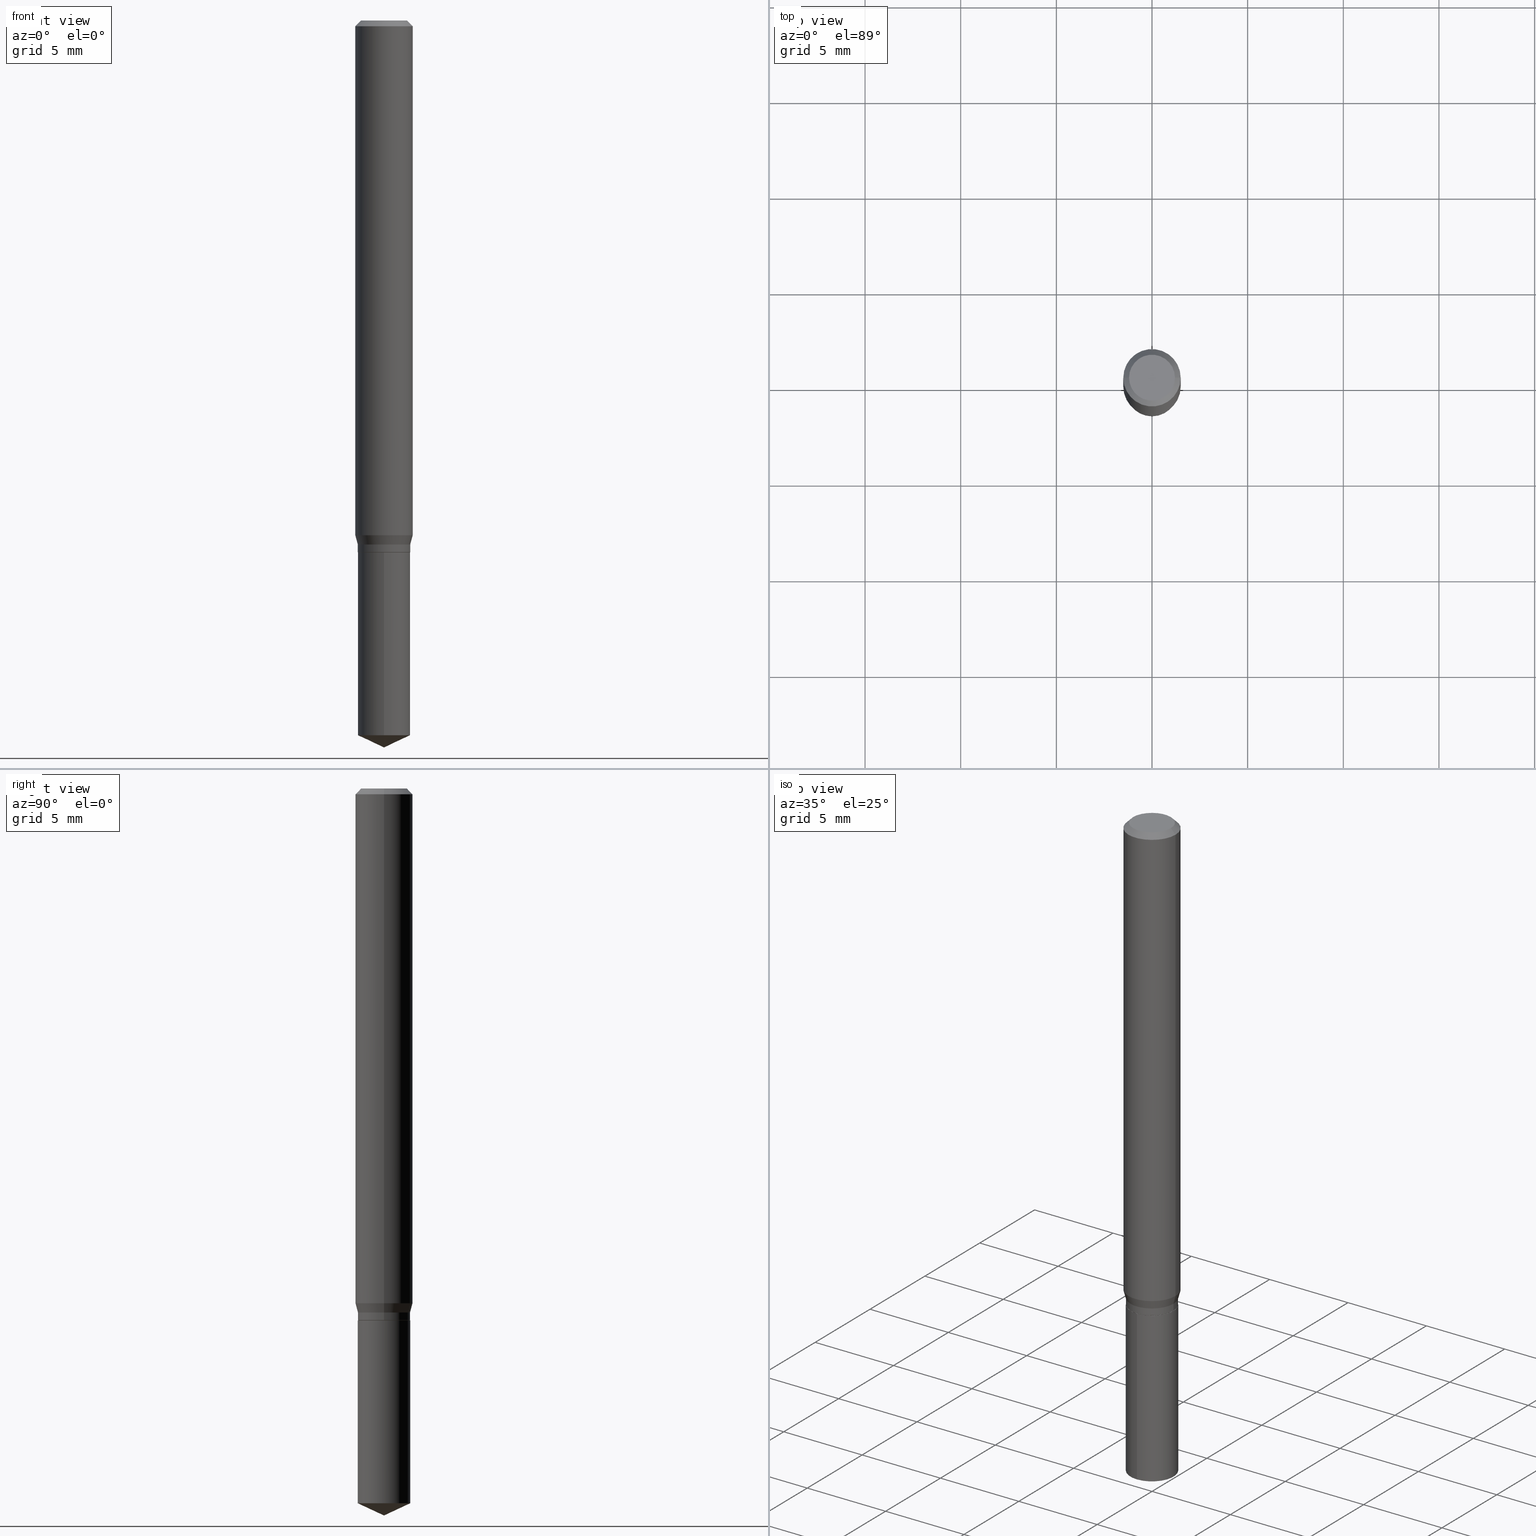
[diagram: canonical four-view strip — front | top / right | iso, engineering-drawing reading convention]
A machine part, canonical four-view strip (front | top / right | iso — engineering-drawing reading convention). The complete STEP part file that produces these views, byte-faithful:
ISO-10303-21;
HEADER;
FILE_DESCRIPTION (( 'STEP AP203' ),
    '1' );
FILE_NAME ('07689.STEP',
    '2024-04-24T01:05:20',
    ( '' ),
    ( '' ),
    'SwSTEP 2.0',
    'SolidWorks 2023',
    '' );
FILE_SCHEMA (( 'CONFIG_CONTROL_DESIGN' ));
ENDSEC;

DATA;
#1 = PERSON_AND_ORGANIZATION ( #293, #357 ) ;
#2 = ADVANCED_BREP_SHAPE_REPRESENTATION ( '07689', ( #387, #219, #482 ), #345 ) ;
#3 = ORIENTED_EDGE ( 'NONE', *, *, #358, .T. ) ;
#4 = CARTESIAN_POINT ( 'NONE',  ( 2.676565608369632355E-29, -3.821426325363822773E-15, -1.094500000000000028 ) ) ;
#5 = CIRCLE ( 'NONE', #366, 0.04724000000000000421 ) ;
#6 = ORIENTED_EDGE ( 'NONE', *, *, #207, .F. ) ;
#7 = CARTESIAN_POINT ( 'NONE',  ( 3.658651059288794515E-29, -5.223626456482161457E-15, -1.496099999999999985 ) ) ;
#8 = APPROVAL ( #86, 'UNSPECIFIED' ) ;
#9 = APPLICATION_PROTOCOL_DEFINITION ( 'international standard', 'config_control_design', 1994, #149 ) ;
#10 = DIRECTION ( 'NONE',  ( 1.000000000000000000, -6.982962677686264344E-15, 0.000000000000000000 ) ) ;
#11 = ORIENTED_EDGE ( 'NONE', *, *, #31, .F. ) ;
#12 = DIRECTION ( 'NONE',  ( -2.445468806185136597E-29, 3.491481338843145583E-15, 1.000000000000000000 ) ) ;
#13 = ORIENTED_EDGE ( 'NONE', *, *, #199, .T. ) ;
#14 = PRODUCT_DEFINITION_FORMATION_WITH_SPECIFIED_SOURCE ( 'ANY', '', #225, .NOT_KNOWN. ) ;
#15 = FACE_OUTER_BOUND ( 'NONE', #151, .T. ) ;
#16 = EDGE_LOOP ( 'NONE', ( #6, #106, #164, #96 ) ) ;
#17 = DIRECTION ( 'NONE',  ( -2.445458899330790108E-29, 3.491495526022433599E-15, 1.000000000000000000 ) ) ;
#18 = LINE ( 'NONE', #326, #451 ) ;
#19 = MECHANICAL_CONTEXT ( 'NONE', #355, 'mechanical' ) ;
#20 = CARTESIAN_POINT ( 'NONE',  ( 3.833378059426100768E-16, 0.05394999999999487705, -1.470942701842538058 ) ) ;
#21 = DIRECTION ( 'NONE',  ( -1.000000000000000000, 6.982962677686266711E-15, 0.000000000000000000 ) ) ;
#22 = VERTEX_POINT ( 'NONE', #305 ) ;
#23 = CARTESIAN_POINT ( 'NONE',  ( -3.767308364611473060E-16, -0.05395000000000382129, -1.094499999999999806 ) ) ;
#24 = AXIS2_PLACEMENT_3D ( 'NONE', #171, #442, #402 ) ;
#25 = PERSON_AND_ORGANIZATION ( #293, #357 ) ;
#26 = APPROVAL_STATUS ( 'not_yet_approved' ) ;
#27 = CARTESIAN_POINT ( 'NONE',  ( 0.05394999999999999796, -4.141595164135737572E-15, -1.078300000000000036 ) ) ;
#28 = APPROVAL ( #82, 'UNSPECIFIED' ) ;
#29 = COORDINATED_UNIVERSAL_TIME_OFFSET ( 5, 0, .BEHIND. ) ;
#30 = LINE ( 'NONE', #412, #120 ) ;
#31 = EDGE_CURVE ( 'NONE', #108, #368, #226, .T. ) ;
#32 = ORIENTED_EDGE ( 'NONE', *, *, #395, .F. ) ;
#33 = COORDINATED_UNIVERSAL_TIME_OFFSET ( 5, 0, .BEHIND. ) ;
#34 = CARTESIAN_POINT ( 'NONE',  ( 2.676565608369631794E-29, -3.821426325363822773E-15, -1.094499999999999806 ) ) ;
#35 = ORIENTED_EDGE ( 'NONE', *, *, #122, .F. ) ;
#36 = AXIS2_PLACEMENT_3D ( 'NONE', #186, #384, #78 ) ;
#37 = AXIS2_PLACEMENT_3D ( 'NONE', #437, #169, #388 ) ;
#38 = ORIENTED_EDGE ( 'NONE', *, *, #385, .F. ) ;
#39 = ADVANCED_FACE ( 'NONE', ( #115 ), #102, .T. ) ;
#40 = DIRECTION ( 'NONE',  ( -0.7071067811864267805, 7.493145998869918709E-15, 0.7071067811866682540 ) ) ;
#41 = CALENDAR_DATE ( 2024, 23, 4 ) ;
#42 = DIRECTION ( 'NONE',  ( 1.000000000000000000, -6.982962677686266711E-15, 4.876185090822587894E-29 ) ) ;
#43 = PERSON_AND_ORGANIZATION ( #293, #357 ) ;
#44 = VECTOR ( 'NONE', #284, 39.37007874015748143 ) ;
#45 = LOCAL_TIME ( 21, 5, 20.00000000000000000, #33 ) ;
#46 = DIRECTION ( 'NONE',  ( -2.445458899330790108E-29, 3.491495526022433205E-15, 1.000000000000000000 ) ) ;
#47 = CYLINDRICAL_SURFACE ( 'NONE', #138, 0.05394999999999999796 ) ;
#48 = EDGE_CURVE ( 'NONE', #347, #101, #382, .T. ) ;
#49 = ORIENTED_EDGE ( 'NONE', *, *, #223, .F. ) ;
#50 = DIRECTION ( 'NONE',  ( 1.000000000000000000, -6.982962677686266711E-15, 4.876185090822587894E-29 ) ) ;
#51 = CARTESIAN_POINT ( 'NONE',  ( -3.767308364611381355E-16, -0.05395000000000514662, -1.470942701842537614 ) ) ;
#52 = EDGE_CURVE ( 'NONE', #308, #230, #375, .T. ) ;
#53 = DIRECTION ( 'NONE',  ( -6.982962677686265922E-15, -1.000000000000000000, 2.531833172997463757E-15 ) ) ;
#54 = DIRECTION ( 'NONE',  ( 1.000000000000000000, -6.982962677686264344E-15, 0.000000000000000000 ) ) ;
#55 = ORIENTED_EDGE ( 'NONE', *, *, #130, .F. ) ;
#56 = CONICAL_SURFACE ( 'NONE', #338, 84.42940631927426409, 1.134464013796315562 ) ;
#57 = CC_DESIGN_SECURITY_CLASSIFICATION ( #427, ( #14 ) ) ;
#58 = DIRECTION ( 'NONE',  ( -0.7071067811865453523, 2.468850131082234184E-15, -0.7071067811865496822 ) ) ;
#59 = LINE ( 'NONE', #352, #391 ) ;
#60 = DIRECTION ( 'NONE',  ( -1.000000000000000000, 6.982962677686265922E-15, -4.876176775795935793E-29 ) ) ;
#61 = ORIENTED_EDGE ( 'NONE', *, *, #48, .T. ) ;
#62 = DIRECTION ( 'NONE',  ( -2.445468806185136877E-29, 3.491481338843145188E-15, 1.000000000000000000 ) ) ;
#63 = ORIENTED_EDGE ( 'NONE', *, *, #161, .F. ) ;
#64 = EDGE_CURVE ( 'NONE', #230, #308, #473, .T. ) ;
#65 = AXIS2_PLACEMENT_3D ( 'NONE', #421, #46, #113 ) ;
#66 = ORIENTED_EDGE ( 'NONE', *, *, #64, .F. ) ;
#67 = FACE_OUTER_BOUND ( 'NONE', #136, .T. ) ;
#68 = DATE_AND_TIME ( #334, #156 ) ;
#69 = ORIENTED_EDGE ( 'NONE', *, *, #161, .T. ) ;
#70 = DIRECTION ( 'NONE',  ( 1.000000000000000000, -6.982962677686263555E-15, 0.000000000000000000 ) ) ;
#71 = EDGE_CURVE ( 'NONE', #22, #364, #263, .T. ) ;
#72 = DIRECTION ( 'NONE',  ( 1.000000000000000000, -6.982962677686266711E-15, 4.876176775795936353E-29 ) ) ;
#73 = EDGE_LOOP ( 'NONE', ( #49, #474, #356, #3 ) ) ;
#74 = CONICAL_SURFACE ( 'NONE', #24, 0.05344999999999999751, 0.7853981633972775267 ) ;
#75 = AXIS2_PLACEMENT_3D ( 'NONE', #137, #287, #50 ) ;
#76 = CIRCLE ( 'NONE', #265, 0.05394999999999999796 ) ;
#77 = FACE_OUTER_BOUND ( 'NONE', #339, .T. ) ;
#78 = DIRECTION ( 'NONE',  ( -6.982962677686265922E-15, -1.000000000000000000, 5.063666345994927514E-15 ) ) ;
#79 = EDGE_LOOP ( 'NONE', ( #11, #460, #483, #55 ) ) ;
#80 = CC_DESIGN_DATE_AND_TIME_ASSIGNMENT ( #204, #330, ( #427 ) ) ;
#81 = AXIS2_PLACEMENT_3D ( 'NONE', #400, #435, #10 ) ;
#82 = APPROVAL_STATUS ( 'not_yet_approved' ) ;
#83 = UNCERTAINTY_MEASURE_WITH_UNIT (LENGTH_MEASURE( 1.000000000000000082E-05 ), #461, 'distance_accuracy_value', 'NONE');
#84 = FACE_OUTER_BOUND ( 'NONE', #73, .T. ) ;
#85 = DIRECTION ( 'NONE',  ( -6.328713451373374112E-15, -0.9063077870366490485, 0.4226182617407013287 ) ) ;
#86 = APPROVAL_STATUS ( 'not_yet_approved' ) ;
#87 = EDGE_CURVE ( 'NONE', #251, #401, #271, .T. ) ;
#88 = DIRECTION ( 'NONE',  ( -2.445468806185136597E-29, 3.491481338843145583E-15, 1.000000000000000000 ) ) ;
#89 = AXIS2_PLACEMENT_3D ( 'NONE', #424, #88, #198 ) ;
#90 = CARTESIAN_POINT ( 'NONE',  ( 2.676565608369631794E-29, -3.821426325363822773E-15, -1.094499999999999806 ) ) ;
#91 = APPROVAL_PERSON_ORGANIZATION ( #267, #28, #222 ) ;
#92 = DIRECTION ( 'NONE',  ( 2.445458899330789267E-29, -3.491495526022433599E-15, -1.000000000000000000 ) ) ;
#93 = ORIENTED_EDGE ( 'NONE', *, *, #403, .F. ) ;
#94 = APPROVAL_DATE_TIME ( #431, #8 ) ;
#95 = PLANE ( 'NONE',  #450 ) ;
#96 = ORIENTED_EDGE ( 'NONE', *, *, #374, .F. ) ;
#97 = CARTESIAN_POINT ( 'NONE',  ( 0.05344999999999999751, -4.194665680486153647E-15, -1.094500000000000028 ) ) ;
#98 = LINE ( 'NONE', #439, #237 ) ;
#99 = DIRECTION ( 'NONE',  ( 0.000000000000000000, 0.000000000000000000, 1.000000000000000000 ) ) ;
#100 = CARTESIAN_POINT ( 'NONE',  ( -0.05394999999999999796, -3.408934650241908050E-15, -1.078300000000000036 ) ) ;
#101 = VERTEX_POINT ( 'NONE', #490 ) ;
#102 = CONICAL_SURFACE ( 'NONE', #350, 0.05344999999999999751, 0.7853981633972775267 ) ;
#103 = CIRCLE ( 'NONE', #229, 0.05344999999999999751 ) ;
#104 = DIRECTION ( 'NONE',  ( 2.438088387897960049E-29, -3.491481338843145188E-15, -1.000000000000000000 ) ) ;
#105 = EDGE_CURVE ( 'NONE', #108, #475, #195, .T. ) ;
#106 = ORIENTED_EDGE ( 'NONE', *, *, #52, .T. ) ;
#107 = DIRECTION ( 'NONE',  ( -2.445458899330790108E-29, 3.491495526022433205E-15, 1.000000000000000000 ) ) ;
#108 = VERTEX_POINT ( 'NONE', #311 ) ;
#109 = VECTOR ( 'NONE', #417, 39.37007874015748143 ) ;
#110 = ORIENTED_EDGE ( 'NONE', *, *, #64, .T. ) ;
#111 = CARTESIAN_POINT ( 'NONE',  ( 0.05905000000000006771, -4.123439461173745257E-16, 2.879382386107503723E-30 ) ) ;
#112 = EDGE_CURVE ( 'NONE', #22, #368, #327, .T. ) ;
#113 = DIRECTION ( 'NONE',  ( -6.982962677686265922E-15, -1.000000000000000000, 5.063666345994927514E-15 ) ) ;
#114 = VECTOR ( 'NONE', #432, 39.37007874015748143 ) ;
#115 = FACE_OUTER_BOUND ( 'NONE', #79, .T. ) ;
#116 = CARTESIAN_POINT ( 'NONE',  ( 2.675342873966538993E-29, -3.819680584694400481E-15, -1.093999999999999861 ) ) ;
#117 = CC_DESIGN_PERSON_AND_ORGANIZATION_ASSIGNMENT ( #242, #165, ( #270 ) ) ;
#118 = SECURITY_CLASSIFICATION_LEVEL ( 'unclassified' ) ;
#119 = ORIENTED_EDGE ( 'NONE', *, *, #430, .F. ) ;
#120 = VECTOR ( 'NONE', #217, 39.37007874015748854 ) ;
#121 = LINE ( 'NONE', #275, #210 ) ;
#122 = EDGE_CURVE ( 'NONE', #249, #230, #121, .T. ) ;
#123 = DIRECTION ( 'NONE',  ( -6.982962677686265922E-15, -1.000000000000000000, 2.531833172997463757E-15 ) ) ;
#124 = CARTESIAN_POINT ( 'NONE',  ( -3.767308364611473060E-16, -0.05395000000000382129, -1.094499999999999806 ) ) ;
#125 = PERSON_AND_ORGANIZATION ( #293, #357 ) ;
#126 = DIRECTION ( 'NONE',  ( -2.445458899330790108E-29, 3.491495526022433205E-15, 1.000000000000000000 ) ) ;
#127 = AXIS2_PLACEMENT_3D ( 'NONE', #407, #369, #480 ) ;
#128 = DIRECTION ( 'NONE',  ( 1.000000000000000000, 0.000000000000000000, 0.000000000000000000 ) ) ;
#129 = CARTESIAN_POINT ( 'NONE',  ( -0.05394999999999999796, 3.833378059425740358E-16, -2.653765481192521723E-30 ) ) ;
#130 = EDGE_CURVE ( 'NONE', #368, #22, #299, .T. ) ;
#131 = CARTESIAN_POINT ( 'NONE',  ( -0.05394999999999999796, -3.381526521731989655E-15, -1.078300000000000036 ) ) ;
#132 = ORIENTED_EDGE ( 'NONE', *, *, #441, .T. ) ;
#133 = CARTESIAN_POINT ( 'NONE',  ( 0.05905000000000013016, -4.110753306465706902E-15, -1.059266540881398155 ) ) ;
#134 = FACE_OUTER_BOUND ( 'NONE', #373, .T. ) ;
#135 = CYLINDRICAL_SURFACE ( 'NONE', #398, 0.05905000000000006771 ) ;
#136 = EDGE_LOOP ( 'NONE', ( #193, #436, #443 ) ) ;
#137 = CARTESIAN_POINT ( 'NONE',  ( 8.265746106709734507E-48, -1.180129479067563789E-33, -3.380025165646692144E-19 ) ) ;
#138 = AXIS2_PLACEMENT_3D ( 'NONE', #266, #381, #228 ) ;
#139 = ADVANCED_FACE ( 'NONE', ( #396 ), #173, .T. ) ;
#140 = ORIENTED_EDGE ( 'NONE', *, *, #112, .F. ) ;
#141 = DIRECTION ( 'NONE',  ( -1.000000000000000000, 6.982962677686266711E-15, 0.000000000000000000 ) ) ;
#142 = CARTESIAN_POINT ( 'NONE',  ( -9.261924752013118283E-28, 1.322368428517963298E-13, 37.87397874015748300 ) ) ;
#143 = VERTEX_POINT ( 'NONE', #162 ) ;
#144 = EDGE_LOOP ( 'NONE', ( #295, #13, #213, #63 ) ) ;
#145 = AXIS2_PLACEMENT_3D ( 'NONE', #378, #232, #386 ) ;
#146 = CALENDAR_DATE ( 2024, 23, 4 ) ;
#147 = FACE_OUTER_BOUND ( 'NONE', #320, .T. ) ;
#148 = EDGE_LOOP ( 'NONE', ( #269, #254, #132, #449 ) ) ;
#149 = APPLICATION_CONTEXT ( 'configuration controlled 3d designs of mechanical parts and assemblies' ) ;
#150 = ADVANCED_FACE ( 'NONE', ( #247 ), #354, .F. ) ;
#151 = EDGE_LOOP ( 'NONE', ( #244, #183 ) ) ;
#152 = CC_DESIGN_APPROVAL ( #28, ( #14 ) ) ;
#153 = ADVANCED_FACE ( 'NONE', ( #282 ), #203, .T. ) ;
#154 = DIRECTION ( 'NONE',  ( 1.000000000000000000, -6.982962677686263555E-15, 0.000000000000000000 ) ) ;
#155 = DIRECTION ( 'NONE',  ( -2.445468806185136597E-29, 3.491481338843145583E-15, 1.000000000000000000 ) ) ;
#156 = LOCAL_TIME ( 21, 5, 20.00000000000000000, #29 ) ;
#157 = CARTESIAN_POINT ( 'NONE',  ( 2.676565608369631794E-29, -3.821426325363822773E-15, -1.094499999999999806 ) ) ;
#158 = DIRECTION ( 'NONE',  ( -2.445468806185136597E-29, 3.491481338843145583E-15, 1.000000000000000000 ) ) ;
#159 = LINE ( 'NONE', #359, #114 ) ;
#160 = APPROVAL_ROLE ( '' ) ;
#161 = EDGE_CURVE ( 'NONE', #364, #453, #159, .T. ) ;
#162 = CARTESIAN_POINT ( 'NONE',  ( 0.05904999999999999832, -4.535783407291118600E-16, -0.01181000000000007218 ) ) ;
#163 = AXIS2_PLACEMENT_3D ( 'NONE', #34, #399, #252 ) ;
#164 = ORIENTED_EDGE ( 'NONE', *, *, #456, .T. ) ;
#165 = PERSON_AND_ORGANIZATION_ROLE ( 'creator' ) ;
#166 = LINE ( 'NONE', #324, #321 ) ;
#167 = DIMENSIONAL_EXPONENTS ( 1.000000000000000000, 0.000000000000000000, 0.000000000000000000, 0.000000000000000000, 0.000000000000000000, 0.000000000000000000, 0.000000000000000000 ) ;
#168 = ORIENTED_EDGE ( 'NONE', *, *, #194, .F. ) ;
#169 = DIRECTION ( 'NONE',  ( -2.445468806185136597E-29, 3.491481338843145583E-15, 1.000000000000000000 ) ) ;
#170 = CARTESIAN_POINT ( 'NONE',  ( 2.888098660104664204E-31, -4.123439461173780263E-17, -0.01181000000000007218 ) ) ;
#171 = CARTESIAN_POINT ( 'NONE',  ( 2.676565608369632355E-29, -3.821426325363822773E-15, -1.094500000000000028 ) ) ;
#172 = ADVANCED_FACE ( 'NONE', ( #15 ), #95, .F. ) ;
#173 = CONICAL_SURFACE ( 'NONE', #422, 0.05394999999999999796, 0.2617993877991502405 ) ;
#174 = EDGE_LOOP ( 'NONE', ( #35, #332, #66 ) ) ;
#175 = AXIS2_PLACEMENT_3D ( 'NONE', #192, #292, #276 ) ;
#176 = VERTEX_POINT ( 'NONE', #277 ) ;
#177 = COORDINATED_UNIVERSAL_TIME_OFFSET ( 5, 0, .BEHIND. ) ;
#178 = DIRECTION ( 'NONE',  ( -2.445468806185136597E-29, 3.491481338843145583E-15, 1.000000000000000000 ) ) ;
#179 = ORIENTED_EDGE ( 'NONE', *, *, #315, .T. ) ;
#180 = APPROVAL_DATE_TIME ( #476, #478 ) ;
#181 = CARTESIAN_POINT ( 'NONE',  ( 2.636949013709432426E-29, -3.764864327674563691E-15, -1.078300000000000036 ) ) ;
#182 = PRODUCT_RELATED_PRODUCT_CATEGORY ( 'detail', '', ( #225 ) ) ;
#183 = ORIENTED_EDGE ( 'NONE', *, *, #374, .T. ) ;
#184 = DATE_AND_TIME ( #41, #367 ) ;
#185 = ORIENTED_EDGE ( 'NONE', *, *, #112, .T. ) ;
#186 = CARTESIAN_POINT ( 'NONE',  ( 3.597140763678593592E-29, -5.135774334650840143E-15, -1.470942701842537836 ) ) ;
#187 = EDGE_CURVE ( 'NONE', #218, #364, #280, .T. ) ;
#188 = APPROVAL_DATE_TIME ( #184, #28 ) ;
#189 = AXIS2_PLACEMENT_3D ( 'NONE', #157, #126, #123 ) ;
#190 = CARTESIAN_POINT ( 'NONE',  ( 8.265746106709734507E-48, -1.180129479067563789E-33, -3.380025165646692144E-19 ) ) ;
#191 = DIRECTION ( 'NONE',  ( -2.445468806185136597E-29, 3.491481338843145583E-15, 1.000000000000000000 ) ) ;
#192 = CARTESIAN_POINT ( 'NONE',  ( 2.590403283161092130E-29, -3.698409360348331981E-15, -1.059266540881398155 ) ) ;
#193 = ORIENTED_EDGE ( 'NONE', *, *, #303, .F. ) ;
#194 = EDGE_CURVE ( 'NONE', #368, #218, #470, .T. ) ;
#195 = CIRCLE ( 'NONE', #464, 0.05344999999999999751 ) ;
#196 = CONICAL_SURFACE ( 'NONE', #457, 84.42940631927426409, 1.134464013796315562 ) ;
#197 = CARTESIAN_POINT ( 'NONE',  ( 2.675342873966538993E-29, -3.819680584694400481E-15, -1.093999999999999861 ) ) ;
#198 = DIRECTION ( 'NONE',  ( 1.000000000000000000, -6.982962677686266711E-15, 4.876176775795936353E-29 ) ) ;
#199 = EDGE_CURVE ( 'NONE', #218, #347, #234, .T. ) ;
#200 = DIRECTION ( 'NONE',  ( 6.982962677686265922E-15, 1.000000000000000000, -3.491495526022433599E-15 ) ) ;
#201 = COORDINATED_UNIVERSAL_TIME_OFFSET ( 5, 0, .BEHIND. ) ;
#202 = CIRCLE ( 'NONE', #236, 0.05904999999999999832 ) ;
#203 = CYLINDRICAL_SURFACE ( 'NONE', #89, 0.05905000000000006771 ) ;
#204 = DATE_AND_TIME ( #411, #45 ) ;
#205 = DIRECTION ( 'NONE',  ( 2.445468806185136597E-29, -3.491481338843145583E-15, -1.000000000000000000 ) ) ;
#206 = FACE_OUTER_BOUND ( 'NONE', #241, .T. ) ;
#207 = EDGE_CURVE ( 'NONE', #308, #401, #166, .T. ) ;
#208 = DIRECTION ( 'NONE',  ( -2.445458899330790108E-29, 3.491495526022433205E-15, 1.000000000000000000 ) ) ;
#209 = ORIENTED_EDGE ( 'NONE', *, *, #187, .F. ) ;
#210 = VECTOR ( 'NONE', #85, 39.37007874015748143 ) ;
#211 = ORIENTED_EDGE ( 'NONE', *, *, #223, .T. ) ;
#212 = APPROVAL_PERSON_ORGANIZATION ( #448, #478, #255 ) ;
#213 = ORIENTED_EDGE ( 'NONE', *, *, #472, .F. ) ;
#214 = ADVANCED_FACE ( 'NONE', ( #285 ), #312, .T. ) ;
#215 = DATE_TIME_ROLE ( 'creation_date' ) ;
#216 = EDGE_LOOP ( 'NONE', ( #119, #286 ) ) ;
#217 = DIRECTION ( 'NONE',  ( 6.439704144417028775E-15, 0.9063077870366519351, 0.4226182617406950559 ) ) ;
#218 = VERTEX_POINT ( 'NONE', #100 ) ;
#219 = MANIFOLD_SOLID_BREP ( 'Body-Move/Copy2[2]', #408 ) ;
#220 = VECTOR ( 'NONE', #243, 39.37007874015748143 ) ;
#221 = AXIS2_PLACEMENT_3D ( 'NONE', #477, #289, #245 ) ;
#222 = APPROVAL_ROLE ( '' ) ;
#223 = EDGE_CURVE ( 'NONE', #447, #143, #59, .T. ) ;
#224 = CARTESIAN_POINT ( 'NONE',  ( 2.676565608369632355E-29, -3.821426325363822773E-15, -1.094500000000000028 ) ) ;
#225 = PRODUCT ( '07689', '07689', '', ( #19 ) ) ;
#226 = LINE ( 'NONE', #341, #415 ) ;
#227 = AXIS2_PLACEMENT_3D ( 'NONE', #90, #238, #53 ) ;
#228 = DIRECTION ( 'NONE',  ( 1.000000000000000000, -6.982962677686266711E-15, 4.876176775795936353E-29 ) ) ;
#229 = AXIS2_PLACEMENT_3D ( 'NONE', #224, #383, #70 ) ;
#230 = VERTEX_POINT ( 'NONE', #51 ) ;
#231 = CC_DESIGN_DATE_AND_TIME_ASSIGNMENT ( #68, #215, ( #270 ) ) ;
#232 = DIRECTION ( 'NONE',  ( -2.445458899330790108E-29, 3.491495526022433205E-15, 1.000000000000000000 ) ) ;
#233 = LENGTH_MEASURE_WITH_UNIT ( LENGTH_MEASURE( 0.02539999999999999897 ), #467 );
#234 = LINE ( 'NONE', #131, #220 ) ;
#235 = ORIENTED_EDGE ( 'NONE', *, *, #472, .T. ) ;
#236 = AXIS2_PLACEMENT_3D ( 'NONE', #393, #452, #446 ) ;
#237 = VECTOR ( 'NONE', #58, 39.37007874015748143 ) ;
#238 = DIRECTION ( 'NONE',  ( -2.445458899330790108E-29, 3.491495526022433205E-15, 1.000000000000000000 ) ) ;
#239 = ADVANCED_FACE ( 'NONE', ( #206 ), #362, .T. ) ;
#240 = DIRECTION ( 'NONE',  ( -2.445458899330790108E-29, 3.491495526022433599E-15, 1.000000000000000000 ) ) ;
#241 = EDGE_LOOP ( 'NONE', ( #110, #298, #414, #348 ) ) ;
#242 = PERSON_AND_ORGANIZATION ( #293, #357 ) ;
#243 = DIRECTION ( 'NONE',  ( -0.2588190451025215166, 5.211531920934551042E-15, 0.9659258262890679791 ) ) ;
#244 = ORIENTED_EDGE ( 'NONE', *, *, #87, .T. ) ;
#245 = DIRECTION ( 'NONE',  ( 1.000000000000000000, -6.982962677686265133E-15, 0.000000000000000000 ) ) ;
#246 = VECTOR ( 'NONE', #419, 39.37007874015748143 ) ;
#247 = FACE_OUTER_BOUND ( 'NONE', #216, .T. ) ;
#248 = CONICAL_SURFACE ( 'NONE', #351, 0.05904999999999999832, 0.7853981633974452814 ) ;
#249 = VERTEX_POINT ( 'NONE', #7 ) ;
#250 = FACE_OUTER_BOUND ( 'NONE', #174, .T. ) ;
#251 = VERTEX_POINT ( 'NONE', #124 ) ;
#252 = DIRECTION ( 'NONE',  ( -6.982962677686265922E-15, -1.000000000000000000, 2.531833172997463757E-15 ) ) ;
#253 = CARTESIAN_POINT ( 'NONE',  ( 0.000000000000000000, 0.000000000000000000, 0.000000000000000000 ) ) ;
#254 = ORIENTED_EDGE ( 'NONE', *, *, #380, .T. ) ;
#255 = APPROVAL_ROLE ( '' ) ;
#256 = PLANE ( 'NONE',  #301 ) ;
#257 = ORIENTED_EDGE ( 'NONE', *, *, #130, .T. ) ;
#258 = CIRCLE ( 'NONE', #75, 0.04724000000000000421 ) ;
#259 = CC_DESIGN_PERSON_AND_ORGANIZATION_ASSIGNMENT ( #25, #438, ( #427 ) ) ;
#260 = CARTESIAN_POINT ( 'NONE',  ( -9.261924752013118283E-28, 1.322368428517963298E-13, 37.87397874015748300 ) ) ;
#261 = ORIENTED_EDGE ( 'NONE', *, *, #278, .F. ) ;
#262 = ADVANCED_FACE ( 'NONE', ( #279 ), #425, .T. ) ;
#263 = LINE ( 'NONE', #379, #109 ) ;
#264 = AXIS2_PLACEMENT_3D ( 'NONE', #116, #463, #268 ) ;
#265 = AXIS2_PLACEMENT_3D ( 'NONE', #181, #405, #337 ) ;
#266 = CARTESIAN_POINT ( 'NONE',  ( 0.000000000000000000, 0.000000000000000000, 0.000000000000000000 ) ) ;
#267 = PERSON_AND_ORGANIZATION ( #293, #357 ) ;
#268 = DIRECTION ( 'NONE',  ( 1.000000000000000000, -6.982962677686264344E-15, 0.000000000000000000 ) ) ;
#269 = ORIENTED_EDGE ( 'NONE', *, *, #48, .F. ) ;
#270 = PRODUCT_DEFINITION ( 'UNKNOWN', '', #14, #481 ) ;
#271 = CIRCLE ( 'NONE', #145, 0.05394999999999999796 ) ;
#272 =( NAMED_UNIT ( * ) SI_UNIT ( $, .STERADIAN. ) SOLID_ANGLE_UNIT ( ) );
#273 = APPROVAL_PERSON_ORGANIZATION ( #316, #8, #160 ) ;
#274 = CARTESIAN_POINT ( 'NONE',  ( 2.888098660104664204E-31, -4.123439461173780263E-17, -0.01181000000000007218 ) ) ;
#275 = CARTESIAN_POINT ( 'NONE',  ( 3.658651059288795076E-29, -5.223626456482161457E-15, -1.496099999999999985 ) ) ;
#276 = DIRECTION ( 'NONE',  ( 1.000000000000000000, -6.982962677686265133E-15, 0.000000000000000000 ) ) ;
#277 = CARTESIAN_POINT ( 'NONE',  ( -0.04724000000000000421, 3.504923541997677355E-16, -3.380025165670481712E-19 ) ) ;
#278 = EDGE_CURVE ( 'NONE', #143, #101, #202, .T. ) ;
#279 = FACE_OUTER_BOUND ( 'NONE', #16, .T. ) ;
#280 = CIRCLE ( 'NONE', #344, 0.05394999999999999796 ) ;
#281 = AXIS2_PLACEMENT_3D ( 'NONE', #170, #205, #21 ) ;
#282 = FACE_OUTER_BOUND ( 'NONE', #148, .T. ) ;
#283 = APPLICATION_PROTOCOL_DEFINITION ( 'international standard', 'config_control_design', 1994, #355 ) ;
#284 = DIRECTION ( 'NONE',  ( -2.445468806185136877E-29, 3.491481338843145188E-15, 1.000000000000000000 ) ) ;
#285 = FACE_OUTER_BOUND ( 'NONE', #390, .T. ) ;
#286 = ORIENTED_EDGE ( 'NONE', *, *, #105, .F. ) ;
#287 = DIRECTION ( 'NONE',  ( -2.445468806185136597E-29, 3.491481338843145583E-15, 1.000000000000000000 ) ) ;
#288 = ADVANCED_FACE ( 'NONE', ( #250 ), #56, .T. ) ;
#289 = DIRECTION ( 'NONE',  ( -2.445468806185136597E-29, 3.491481338843145583E-15, 1.000000000000000000 ) ) ;
#290 = VECTOR ( 'NONE', #62, 39.37007874015748143 ) ;
#291 = FACE_OUTER_BOUND ( 'NONE', #485, .T. ) ;
#292 = DIRECTION ( 'NONE',  ( -2.445468806185136597E-29, 3.491481338843145583E-15, 1.000000000000000000 ) ) ;
#293 = PERSON ( 'UNSPECIFIED', 'UNSPECIFIED', 'UNSPECIFIED', ('UNSPECIFIED'), ('UNSPECIFIED'), ('UNSPECIFIED') ) ;
#294 = FACE_OUTER_BOUND ( 'NONE', #410, .T. ) ;
#295 = ORIENTED_EDGE ( 'NONE', *, *, #385, .T. ) ;
#296 = CARTESIAN_POINT ( 'NONE',  ( 4.132873053354867254E-48, -5.900647395337818946E-34, -1.690012582823346072E-19 ) ) ;
#297 = ADVANCED_FACE ( 'NONE', ( #147 ), #135, .T. ) ;
#298 = ORIENTED_EDGE ( 'NONE', *, *, #207, .T. ) ;
#299 = CIRCLE ( 'NONE', #306, 0.05394999999999999796 ) ;
#300 = ORIENTED_EDGE ( 'NONE', *, *, #71, .F. ) ;
#301 = AXIS2_PLACEMENT_3D ( 'NONE', #296, #104, #60 ) ;
#302 = ORIENTED_EDGE ( 'NONE', *, *, #187, .T. ) ;
#303 = EDGE_CURVE ( 'NONE', #249, #308, #30, .T. ) ;
#304 = COORDINATED_UNIVERSAL_TIME_OFFSET ( 5, 0, .BEHIND. ) ;
#305 = CARTESIAN_POINT ( 'NONE',  ( 0.05394999999999999796, -4.196411421155574362E-15, -1.093999999999999861 ) ) ;
#306 = AXIS2_PLACEMENT_3D ( 'NONE', #197, #158, #54 ) ;
#307 = CIRCLE ( 'NONE', #221, 0.05905000000000013016 ) ;
#308 = VERTEX_POINT ( 'NONE', #20 ) ;
#309 = PERSON_AND_ORGANIZATION_ROLE ( 'design_supplier' ) ;
#310 = ADVANCED_FACE ( 'NONE', ( #291 ), #74, .T. ) ;
#311 = CARTESIAN_POINT ( 'NONE',  ( -0.05344999999999999751, -3.438992005925938041E-15, -1.094500000000000028 ) ) ;
#312 = CONICAL_SURFACE ( 'NONE', #81, 0.05394999999999999796, 0.2617993877991502405 ) ;
#313 = DIRECTION ( 'NONE',  ( -2.438088387897960049E-29, 3.491481338843145188E-15, 1.000000000000000000 ) ) ;
#314 = FACE_OUTER_BOUND ( 'NONE', #479, .T. ) ;
#315 = EDGE_CURVE ( 'NONE', #176, #447, #5, .T. ) ;
#316 = PERSON_AND_ORGANIZATION ( #293, #357 ) ;
#317 = CARTESIAN_POINT ( 'NONE',  ( 7.234213913666534909E-30, -6.618440010177233693E-15, -1.094500000000000028 ) ) ;
#318 = CALENDAR_DATE ( 2024, 23, 4 ) ;
#319 = CARTESIAN_POINT ( 'NONE',  ( 2.676565608369631794E-29, -3.821426325363822773E-15, -1.094499999999999806 ) ) ;
#320 = EDGE_LOOP ( 'NONE', ( #235, #61, #261, #397 ) ) ;
#321 = VECTOR ( 'NONE', #240, 39.37007874015748143 ) ;
#322 = LOCAL_TIME ( 21, 5, 20.00000000000000000, #177 ) ;
#323 = DIRECTION ( 'NONE',  ( 1.000000000000000000, -6.982962677686264344E-15, 0.000000000000000000 ) ) ;
#324 = CARTESIAN_POINT ( 'NONE',  ( 3.833378059426007091E-16, 0.05394999999999617463, -1.094500000000000028 ) ) ;
#325 = ADVANCED_FACE ( 'NONE', ( #84 ), #248, .T. ) ;
#326 = CARTESIAN_POINT ( 'NONE',  ( 0.05344999999999999751, -4.194665680486153647E-15, -1.094500000000000028 ) ) ;
#327 = CIRCLE ( 'NONE', #264, 0.05394999999999999796 ) ;
#328 = CIRCLE ( 'NONE', #163, 0.05394999999999999796 ) ;
#329 = ORIENTED_EDGE ( 'NONE', *, *, #71, .T. ) ;
#330 = DATE_TIME_ROLE ( 'classification_date' ) ;
#331 = ADVANCED_FACE ( 'NONE', ( #294 ), #376, .T. ) ;
#332 = ORIENTED_EDGE ( 'NONE', *, *, #303, .T. ) ;
#333 = CARTESIAN_POINT ( 'NONE',  ( -0.05394999999999999796, -3.408934650241908050E-15, -1.093999999999999861 ) ) ;
#334 = CALENDAR_DATE ( 2024, 23, 4 ) ;
#335 = ORIENTED_EDGE ( 'NONE', *, *, #194, .T. ) ;
#336 = SHAPE_DEFINITION_REPRESENTATION ( #462, #2 ) ;
#337 = DIRECTION ( 'NONE',  ( 1.000000000000000000, -6.982962677686264344E-15, 0.000000000000000000 ) ) ;
#338 = AXIS2_PLACEMENT_3D ( 'NONE', #142, #107, #370 ) ;
#339 = EDGE_LOOP ( 'NONE', ( #168, #257, #329, #209 ) ) ;
#340 = ORIENTED_EDGE ( 'NONE', *, *, #199, .F. ) ;
#341 = CARTESIAN_POINT ( 'NONE',  ( -0.05344999999999999751, -3.441641233100049242E-15, -1.094500000000000028 ) ) ;
#342 = LINE ( 'NONE', #111, #290 ) ;
#343 = DIRECTION ( 'NONE',  ( 2.445468806185136597E-29, -3.491481338843145583E-15, -1.000000000000000000 ) ) ;
#344 = AXIS2_PLACEMENT_3D ( 'NONE', #468, #466, #323 ) ;
#345 =( GEOMETRIC_REPRESENTATION_CONTEXT ( 3 ) GLOBAL_UNCERTAINTY_ASSIGNED_CONTEXT ( ( #83 ) ) GLOBAL_UNIT_ASSIGNED_CONTEXT ( ( #461, #363, #272 ) ) REPRESENTATION_CONTEXT ( 'NONE', 'WORKASPACE' ) );
#346 = CC_DESIGN_PERSON_AND_ORGANIZATION_ASSIGNMENT ( #1, #309, ( #14 ) ) ;
#347 = VERTEX_POINT ( 'NONE', #445 ) ;
#348 = ORIENTED_EDGE ( 'NONE', *, *, #456, .F. ) ;
#349 = ADVANCED_FACE ( 'NONE', ( #134 ), #256, .F. ) ;
#350 = AXIS2_PLACEMENT_3D ( 'NONE', #487, #191, #458 ) ;
#351 = AXIS2_PLACEMENT_3D ( 'NONE', #274, #343, #141 ) ;
#352 = CARTESIAN_POINT ( 'NONE',  ( 0.05904999999999999832, -4.463468013801466955E-16, -0.01181000000000007218 ) ) ;
#353 = PERSON_AND_ORGANIZATION_ROLE ( 'design_owner' ) ;
#354 = PLANE ( 'NONE',  #488 ) ;
#355 = APPLICATION_CONTEXT ( 'configuration controlled 3d designs of mechanical parts and assemblies' ) ;
#356 = ORIENTED_EDGE ( 'NONE', *, *, #395, .T. ) ;
#357 = ORGANIZATION ( 'UNSPECIFIED', 'UNSPECIFIED', '' ) ;
#358 = EDGE_CURVE ( 'NONE', #101, #143, #440, .T. ) ;
#359 = CARTESIAN_POINT ( 'NONE',  ( 0.05394999999999999796, -4.141595164135737572E-15, -1.078300000000000036 ) ) ;
#360 = ORIENTED_EDGE ( 'NONE', *, *, #469, .T. ) ;
#361 = CARTESIAN_POINT ( 'NONE',  ( 3.833378059426100275E-16, 0.05394999999999617463, -1.094500000000000028 ) ) ;
#362 = CYLINDRICAL_SURFACE ( 'NONE', #189, 0.05394999999999999796 ) ;
#363 =( NAMED_UNIT ( * ) PLANE_ANGLE_UNIT ( ) SI_UNIT ( $, .RADIAN. ) );
#364 = VERTEX_POINT ( 'NONE', #27 ) ;
#365 = ADVANCED_FACE ( 'NONE', ( #67 ), #196, .T. ) ;
#366 = AXIS2_PLACEMENT_3D ( 'NONE', #190, #484, #42 ) ;
#367 = LOCAL_TIME ( 21, 5, 20.00000000000000000, #304 ) ;
#368 = VERTEX_POINT ( 'NONE', #333 ) ;
#369 = DIRECTION ( 'NONE',  ( -2.445468806185136597E-29, 3.491481338843145583E-15, 1.000000000000000000 ) ) ;
#370 = DIRECTION ( 'NONE',  ( -6.982962677686266711E-15, -1.000000000000000000, 3.520397390770457025E-15 ) ) ;
#371 = ORIENTED_EDGE ( 'NONE', *, *, #278, .T. ) ;
#372 = DIRECTION ( 'NONE',  ( -6.982962677686266711E-15, -1.000000000000000000, 3.520397390770457025E-15 ) ) ;
#373 = EDGE_LOOP ( 'NONE', ( #179, #360 ) ) ;
#374 = EDGE_CURVE ( 'NONE', #401, #251, #328, .T. ) ;
#375 = CIRCLE ( 'NONE', #65, 0.05394999999999999796 ) ;
#376 = CONICAL_SURFACE ( 'NONE', #281, 0.05904999999999999832, 0.7853981633974452814 ) ;
#377 = PERSON_AND_ORGANIZATION_ROLE ( 'creator' ) ;
#378 = CARTESIAN_POINT ( 'NONE',  ( 2.676565608369631794E-29, -3.821426325363822773E-15, -1.094499999999999806 ) ) ;
#379 = CARTESIAN_POINT ( 'NONE',  ( 0.05394999999999999796, -3.767308364611740780E-16, 2.630697370541907450E-30 ) ) ;
#380 = EDGE_CURVE ( 'NONE', #347, #453, #307, .T. ) ;
#381 = DIRECTION ( 'NONE',  ( -2.445468806185136597E-29, 3.491481338843145583E-15, 1.000000000000000000 ) ) ;
#382 = LINE ( 'NONE', #455, #246 ) ;
#383 = DIRECTION ( 'NONE',  ( -2.445468806185136597E-29, 3.491481338843145583E-15, 1.000000000000000000 ) ) ;
#384 = DIRECTION ( 'NONE',  ( -2.445458899330790108E-29, 3.491495526022433205E-15, 1.000000000000000000 ) ) ;
#385 = EDGE_CURVE ( 'NONE', #364, #218, #76, .T. ) ;
#386 = DIRECTION ( 'NONE',  ( -6.982962677686265922E-15, -1.000000000000000000, 2.531833172997463757E-15 ) ) ;
#387 = MANIFOLD_SOLID_BREP ( 'Body-Move/Copy2[1]', #426 ) ;
#388 = DIRECTION ( 'NONE',  ( 1.000000000000000000, -6.982962677686266711E-15, 4.876176775795936353E-29 ) ) ;
#389 = DIRECTION ( 'NONE',  ( 0.7071067811865453523, -7.319954787623248157E-15, -0.7071067811865496822 ) ) ;
#390 = EDGE_LOOP ( 'NONE', ( #340, #302, #69, #404 ) ) ;
#391 = VECTOR ( 'NONE', #389, 39.37007874015748143 ) ;
#392 = LOCAL_TIME ( 21, 5, 20.00000000000000000, #201 ) ;
#393 = CARTESIAN_POINT ( 'NONE',  ( 2.888098660104664204E-31, -4.123439461173780263E-17, -0.01181000000000007218 ) ) ;
#394 = DIRECTION ( 'NONE',  ( 1.000000000000000000, -6.982962677686265922E-15, 4.876176775795935793E-29 ) ) ;
#395 = EDGE_CURVE ( 'NONE', #176, #101, #98, .T. ) ;
#396 = FACE_OUTER_BOUND ( 'NONE', #144, .T. ) ;
#397 = ORIENTED_EDGE ( 'NONE', *, *, #441, .F. ) ;
#398 = AXIS2_PLACEMENT_3D ( 'NONE', #253, #178, #72 ) ;
#399 = DIRECTION ( 'NONE',  ( -2.445458899330790108E-29, 3.491495526022433205E-15, 1.000000000000000000 ) ) ;
#400 = CARTESIAN_POINT ( 'NONE',  ( 2.636949013709432426E-29, -3.764864327674563691E-15, -1.078300000000000036 ) ) ;
#401 = VERTEX_POINT ( 'NONE', #361 ) ;
#402 = DIRECTION ( 'NONE',  ( 1.000000000000000000, -6.982962677686263555E-15, 0.000000000000000000 ) ) ;
#403 = EDGE_CURVE ( 'NONE', #475, #22, #18, .T. ) ;
#404 = ORIENTED_EDGE ( 'NONE', *, *, #380, .F. ) ;
#405 = DIRECTION ( 'NONE',  ( -2.445468806185136597E-29, 3.491481338843145583E-15, 1.000000000000000000 ) ) ;
#406 = ORIENTED_EDGE ( 'NONE', *, *, #469, .F. ) ;
#407 = CARTESIAN_POINT ( 'NONE',  ( 2.888098660104664204E-31, -4.123439461173780263E-17, -0.01181000000000007218 ) ) ;
#408 = CLOSED_SHELL ( 'NONE', ( #310, #331, #297, #139, #486, #420, #214, #153, #325, #349, #150, #39 ) ) ;
#409 = CIRCLE ( 'NONE', #175, 0.05905000000000013016 ) ;
#410 = EDGE_LOOP ( 'NONE', ( #406, #211, #371, #32 ) ) ;
#411 = CALENDAR_DATE ( 2024, 23, 4 ) ;
#412 = CARTESIAN_POINT ( 'NONE',  ( 3.658672935554494692E-29, -5.223595400746700193E-15, -1.496099999999999985 ) ) ;
#413 = ORIENTED_EDGE ( 'NONE', *, *, #430, .T. ) ;
#414 = ORIENTED_EDGE ( 'NONE', *, *, #87, .F. ) ;
#415 = VECTOR ( 'NONE', #40, 39.37007874015748143 ) ;
#416 = VECTOR ( 'NONE', #17, 39.37007874015748143 ) ;
#417 = DIRECTION ( 'NONE',  ( -2.445468806185136877E-29, 3.491481338843145188E-15, 1.000000000000000000 ) ) ;
#418 = DIRECTION ( 'NONE',  ( 0.7071067811864267805, -2.468850131080992517E-15, 0.7071067811866682540 ) ) ;
#419 = DIRECTION ( 'NONE',  ( -2.445468806185136877E-29, 3.491481338843145188E-15, 1.000000000000000000 ) ) ;
#420 = ADVANCED_FACE ( 'NONE', ( #77 ), #47, .T. ) ;
#421 = CARTESIAN_POINT ( 'NONE',  ( 3.597140763678593592E-29, -5.135774334650840143E-15, -1.470942701842537836 ) ) ;
#422 = AXIS2_PLACEMENT_3D ( 'NONE', #471, #12, #428 ) ;
#423 = CYLINDRICAL_SURFACE ( 'NONE', #37, 0.05394999999999999796 ) ;
#424 = CARTESIAN_POINT ( 'NONE',  ( 0.000000000000000000, 0.000000000000000000, 0.000000000000000000 ) ) ;
#425 = CYLINDRICAL_SURFACE ( 'NONE', #227, 0.05394999999999999796 ) ;
#426 = CLOSED_SHELL ( 'NONE', ( #239, #288, #365, #262, #172 ) ) ;
#427 = SECURITY_CLASSIFICATION ( '', '', #118 ) ;
#428 = DIRECTION ( 'NONE',  ( 1.000000000000000000, -6.982962677686264344E-15, 0.000000000000000000 ) ) ;
#429 = CC_DESIGN_PERSON_AND_ORGANIZATION_ASSIGNMENT ( #43, #377, ( #14 ) ) ;
#430 = EDGE_CURVE ( 'NONE', #475, #108, #103, .T. ) ;
#431 = DATE_AND_TIME ( #318, #392 ) ;
#432 = DIRECTION ( 'NONE',  ( 0.2588190451025215166, 1.565188264969620784E-15, 0.9659258262890679791 ) ) ;
#433 = LINE ( 'NONE', #23, #416 ) ;
#434 = CARTESIAN_POINT ( 'NONE',  ( 0.000000000000000000, 0.000000000000000000, 0.000000000000000000 ) ) ;
#435 = DIRECTION ( 'NONE',  ( -2.445468806185136597E-29, 3.491481338843145583E-15, 1.000000000000000000 ) ) ;
#436 = ORIENTED_EDGE ( 'NONE', *, *, #122, .T. ) ;
#437 = CARTESIAN_POINT ( 'NONE',  ( 0.000000000000000000, 0.000000000000000000, 0.000000000000000000 ) ) ;
#438 = PERSON_AND_ORGANIZATION_ROLE ( 'classification_officer' ) ;
#439 = CARTESIAN_POINT ( 'NONE',  ( -0.05904999999999999832, 3.711095515056362547E-16, -0.01181000000000007218 ) ) ;
#440 = CIRCLE ( 'NONE', #127, 0.05904999999999999832 ) ;
#441 = EDGE_CURVE ( 'NONE', #453, #143, #342, .T. ) ;
#442 = DIRECTION ( 'NONE',  ( -2.445468806185136597E-29, 3.491481338843145583E-15, 1.000000000000000000 ) ) ;
#443 = ORIENTED_EDGE ( 'NONE', *, *, #52, .F. ) ;
#444 = CARTESIAN_POINT ( 'NONE',  ( 0.04724000000000000421, -3.852183633974369345E-16, -3.380025165621689721E-19 ) ) ;
#445 = CARTESIAN_POINT ( 'NONE',  ( -0.05905000000000013016, -3.278833874881992094E-15, -1.059266540881398155 ) ) ;
#446 = DIRECTION ( 'NONE',  ( 1.000000000000000000, -6.982962677686266711E-15, 0.000000000000000000 ) ) ;
#447 = VERTEX_POINT ( 'NONE', #444 ) ;
#448 = PERSON_AND_ORGANIZATION ( #293, #357 ) ;
#449 = ORIENTED_EDGE ( 'NONE', *, *, #358, .F. ) ;
#450 = AXIS2_PLACEMENT_3D ( 'NONE', #319, #92, #200 ) ;
#451 = VECTOR ( 'NONE', #418, 39.37007874015748143 ) ;
#452 = DIRECTION ( 'NONE',  ( -2.445468806185136597E-29, 3.491481338843145583E-15, 1.000000000000000000 ) ) ;
#453 = VERTEX_POINT ( 'NONE', #133 ) ;
#454 = CC_DESIGN_PERSON_AND_ORGANIZATION_ASSIGNMENT ( #125, #353, ( #225 ) ) ;
#455 = CARTESIAN_POINT ( 'NONE',  ( -0.05905000000000006771, 4.195754854663396409E-16, -2.904631170795525045E-30 ) ) ;
#456 = EDGE_CURVE ( 'NONE', #230, #251, #433, .T. ) ;
#457 = AXIS2_PLACEMENT_3D ( 'NONE', #260, #208, #372 ) ;
#458 = DIRECTION ( 'NONE',  ( 1.000000000000000000, -6.982962677686263555E-15, 0.000000000000000000 ) ) ;
#459 = ORIENTED_EDGE ( 'NONE', *, *, #31, .T. ) ;
#460 = ORIENTED_EDGE ( 'NONE', *, *, #105, .T. ) ;
#461 =( CONVERSION_BASED_UNIT ( 'INCH', #233 ) LENGTH_UNIT ( ) NAMED_UNIT ( #167 ) );
#462 = PRODUCT_DEFINITION_SHAPE ( 'NONE', 'NONE',  #270 ) ;
#463 = DIRECTION ( 'NONE',  ( -2.445468806185136597E-29, 3.491481338843145583E-15, 1.000000000000000000 ) ) ;
#464 = AXIS2_PLACEMENT_3D ( 'NONE', #4, #155, #154 ) ;
#465 = CC_DESIGN_APPROVAL ( #8, ( #270 ) ) ;
#466 = DIRECTION ( 'NONE',  ( -2.445468806185136597E-29, 3.491481338843145583E-15, 1.000000000000000000 ) ) ;
#467 =( LENGTH_UNIT ( ) NAMED_UNIT ( * ) SI_UNIT ( $, .METRE. ) );
#468 = CARTESIAN_POINT ( 'NONE',  ( 2.636949013709432426E-29, -3.764864327674563691E-15, -1.078300000000000036 ) ) ;
#469 = EDGE_CURVE ( 'NONE', #447, #176, #258, .T. ) ;
#470 = LINE ( 'NONE', #129, #44 ) ;
#471 = CARTESIAN_POINT ( 'NONE',  ( 2.636949013709432426E-29, -3.764864327674563691E-15, -1.078300000000000036 ) ) ;
#472 = EDGE_CURVE ( 'NONE', #453, #347, #409, .T. ) ;
#473 = CIRCLE ( 'NONE', #36, 0.05394999999999999796 ) ;
#474 = ORIENTED_EDGE ( 'NONE', *, *, #315, .F. ) ;
#475 = VERTEX_POINT ( 'NONE', #97 ) ;
#476 = DATE_AND_TIME ( #146, #322 ) ;
#477 = CARTESIAN_POINT ( 'NONE',  ( 2.590403283161092130E-29, -3.698409360348331981E-15, -1.059266540881398155 ) ) ;
#478 = APPROVAL ( #26, 'UNSPECIFIED' ) ;
#479 = EDGE_LOOP ( 'NONE', ( #185, #335, #38, #300 ) ) ;
#480 = DIRECTION ( 'NONE',  ( 1.000000000000000000, -6.982962677686266711E-15, 0.000000000000000000 ) ) ;
#481 = DESIGN_CONTEXT ( 'detailed design', #149, 'design' ) ;
#482 = AXIS2_PLACEMENT_3D ( 'NONE', #434, #99, #128 ) ;
#483 = ORIENTED_EDGE ( 'NONE', *, *, #403, .T. ) ;
#484 = DIRECTION ( 'NONE',  ( -2.445468806185136597E-29, 3.491481338843145583E-15, 1.000000000000000000 ) ) ;
#485 = EDGE_LOOP ( 'NONE', ( #413, #459, #140, #93 ) ) ;
#486 = ADVANCED_FACE ( 'NONE', ( #314 ), #423, .T. ) ;
#487 = CARTESIAN_POINT ( 'NONE',  ( 2.676565608369632355E-29, -3.821426325363822773E-15, -1.094500000000000028 ) ) ;
#488 = AXIS2_PLACEMENT_3D ( 'NONE', #317, #313, #394 ) ;
#489 = CC_DESIGN_APPROVAL ( #478, ( #427 ) ) ;
#490 = CARTESIAN_POINT ( 'NONE',  ( -0.05904999999999999832, -1.450246392013694376E-15, -0.01181000000000007218 ) ) ;
ENDSEC;
END-ISO-10303-21;
